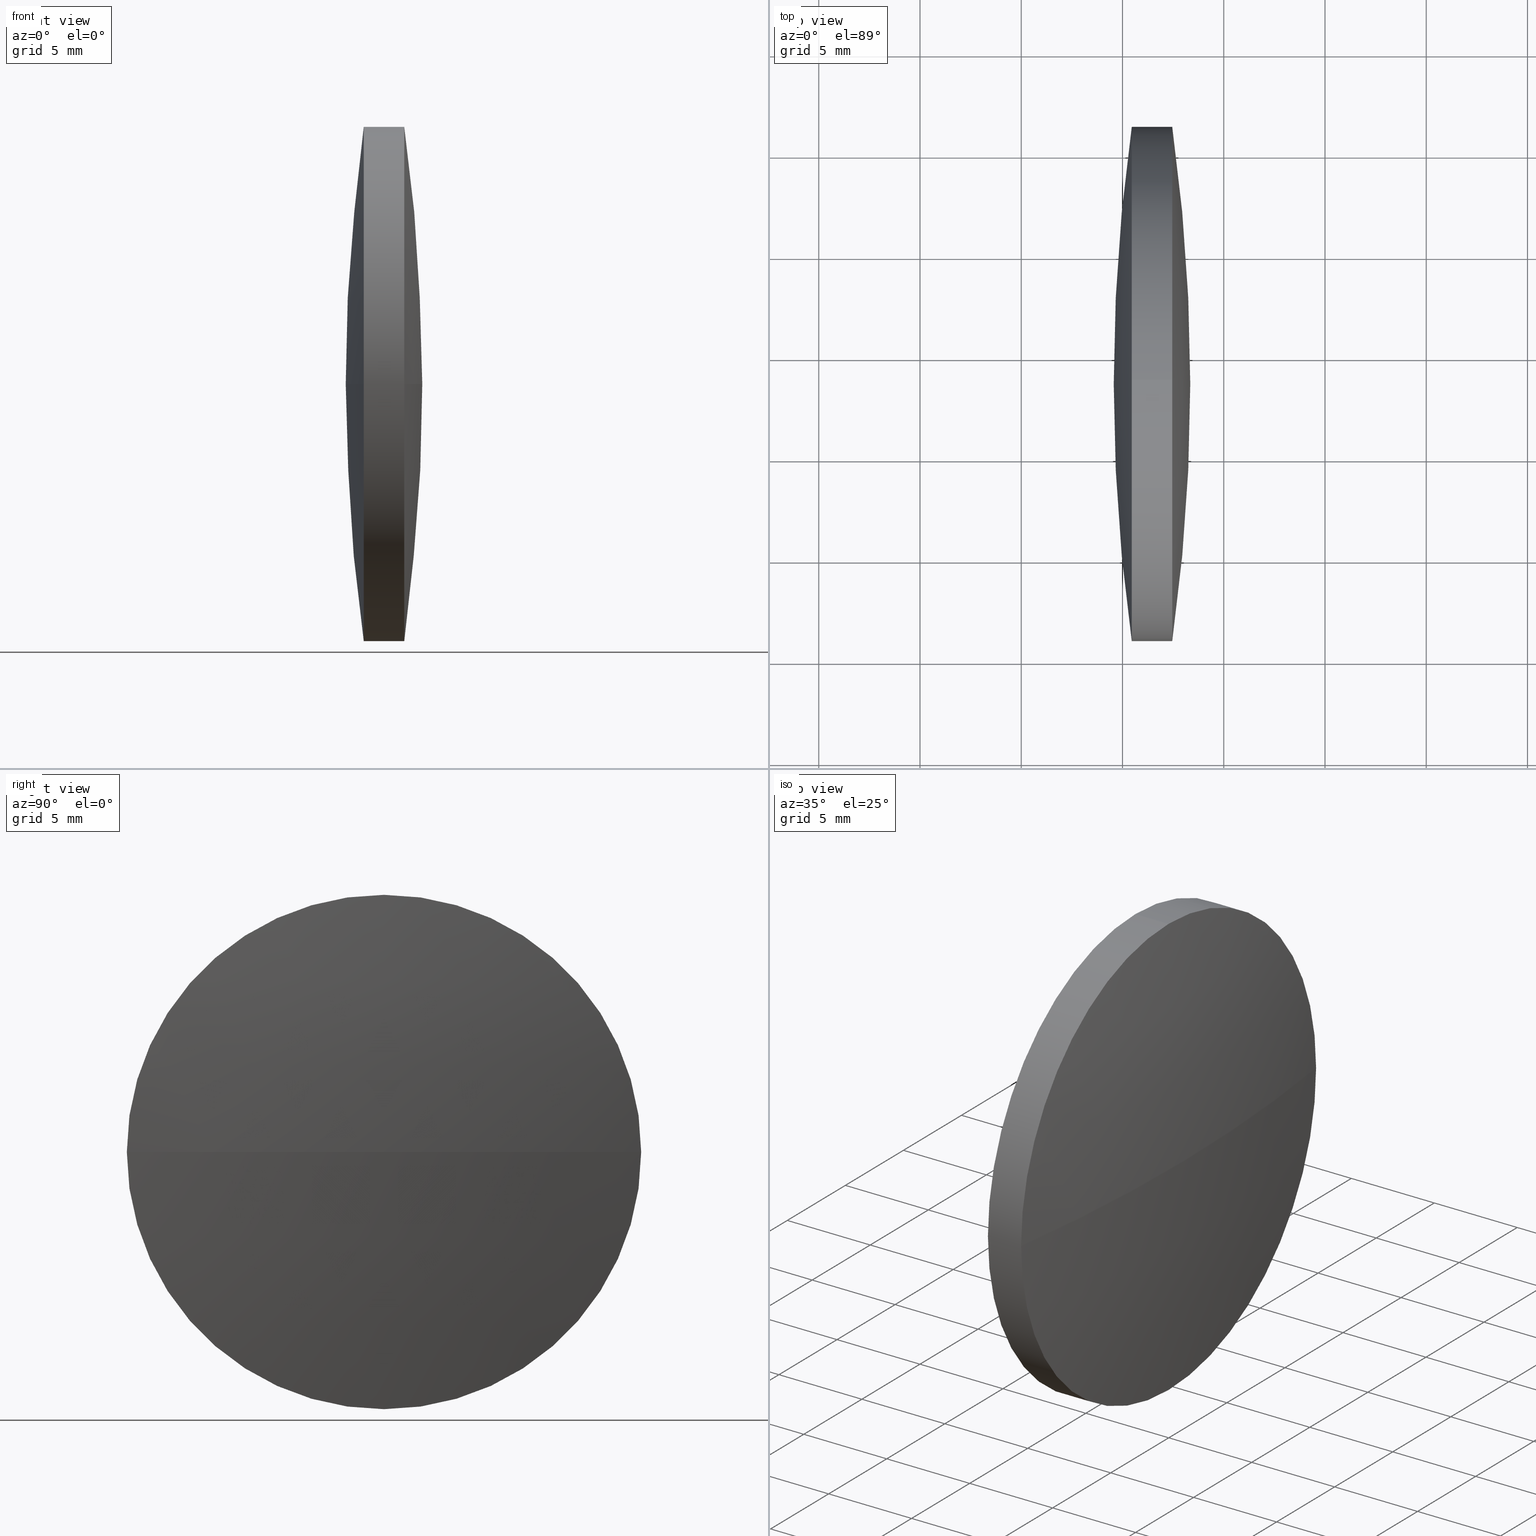
[diagram: canonical four-view strip — front | top / right | iso, engineering-drawing reading convention]
A machine part, canonical four-view strip (front | top / right | iso — engineering-drawing reading convention). The complete STEP part file that produces these views, byte-faithful:
ISO-10303-21;
HEADER;
FILE_DESCRIPTION (( 'STEP AP203' ),
    '1' );
FILE_NAME ('110100.STEP',
    '2019-07-08T06:41:18',
    ( '' ),
    ( '' ),
    'SwSTEP 2.0',
    'SolidWorks 2016',
    '' );
FILE_SCHEMA (( 'CONFIG_CONTROL_DESIGN' ));
ENDSEC;

DATA;
#1 = DATE_AND_TIME ( #54, #69 ) ;
#2 = CARTESIAN_POINT ( 'NONE',  ( 85.45852234609111500, 48.61611302318478100, 0.0000000000000000000 ) ) ;
#3 = CC_DESIGN_APPROVAL ( #117, ( #57 ) ) ;
#4 = ORIENTED_EDGE ( 'NONE', *, *, #28, .F. ) ;
#5 = CC_DESIGN_DATE_AND_TIME_ASSIGNMENT ( #329, #21, ( #107 ) ) ;
#6 = CALENDAR_DATE ( 2019, 8, 7 ) ;
#7 = PERSON_AND_ORGANIZATION ( #297, #109 ) ;
#8 = ORIENTED_EDGE ( 'NONE', *, *, #9, .T. ) ;
#9 = EDGE_CURVE ( 'NONE', #43, #343, #202, .T. ) ;
#10 = DIRECTION ( 'NONE',  ( 0.0000000000000000000, 0.0000000000000000000, 1.000000000000000000 ) ) ;
#11 = DIRECTION ( 'NONE',  ( 0.0000000000000000000, 0.0000000000000000000, -1.000000000000000000 ) ) ;
#12 = DESIGN_CONTEXT ( 'detailed design', #317, 'design' ) ;
#13 = DIRECTION ( 'NONE',  ( 0.0000000000000000000, 0.0000000000000000000, 1.000000000000000000 ) ) ;
#14 = COORDINATED_UNIVERSAL_TIME_OFFSET ( 8, 0, .AHEAD. ) ;
#15 = DIRECTION ( 'NONE',  ( -1.000000000000000000, -0.0000000000000000000, -0.0000000000000000000 ) ) ;
#16 = APPLICATION_PROTOCOL_DEFINITION ( 'international standard', 'config_control_design', 1994, #181 ) ;
#17 = COORDINATED_UNIVERSAL_TIME_OFFSET ( 8, 0, .AHEAD. ) ;
#18 = CC_DESIGN_PERSON_AND_ORGANIZATION_ASSIGNMENT ( #276, #341, ( #155 ) ) ;
#19 = APPROVAL_STATUS ( 'not_yet_approved' ) ;
#20 = EDGE_CURVE ( 'NONE', #22, #130, #261, .T. ) ;
#21 = DATE_TIME_ROLE ( 'creation_date' ) ;
#22 = VERTEX_POINT ( 'NONE', #307 ) ;
#23 = CALENDAR_DATE ( 2019, 8, 7 ) ;
#24 = PERSON_AND_ORGANIZATION ( #297, #109 ) ;
#25 = PRODUCT_DEFINITION ( 'δ֪', '', #187, #12 ) ;
#26 = APPROVAL_DATE_TIME ( #1, #51 ) ;
#27 = AXIS2_PLACEMENT_3D ( 'NONE', #79, #270, #138 ) ;
#28 = EDGE_CURVE ( 'NONE', #192, #169, #66, .T. ) ;
#29 = PERSON_AND_ORGANIZATION ( #297, #109 ) ;
#30 = APPROVAL_STATUS ( 'not_yet_approved' ) ;
#31 = COORDINATED_UNIVERSAL_TIME_OFFSET ( 8, 0, .AHEAD. ) ;
#32 = APPROVAL_PERSON_ORGANIZATION ( #262, #51, #259 ) ;
#33 = ORIENTED_EDGE ( 'NONE', *, *, #83, .T. ) ;
#34 = PERSON_AND_ORGANIZATION ( #297, #109 ) ;
#35 = DIRECTION ( 'NONE',  ( 0.0000000000000000000, 0.0000000000000000000, 1.000000000000000000 ) ) ;
#36 = DIRECTION ( 'NONE',  ( 0.0000000000000000000, 0.0000000000000000000, 1.000000000000000000 ) ) ;
#37 = ADVANCED_FACE ( 'NONE', ( #274 ), #120, .T. ) ;
#38 = DIRECTION ( 'NONE',  ( 0.0000000000000000000, 0.0000000000000000000, 1.000000000000000000 ) ) ;
#39 = CARTESIAN_POINT ( 'NONE',  ( 175.6168209058729100, 48.61611302318473100, 0.0000000000000000000 ) ) ;
#40 = APPROVAL ( #19, 'δָ��' ) ;
#41 = CARTESIAN_POINT ( 'NONE',  ( 87.45786520323396500, 61.31611302318484000, 1.555301434917129800E-015 ) ) ;
#42 = CARTESIAN_POINT ( 'NONE',  ( 0.0000000000000000000, 0.0000000000000000000, 0.0000000000000000000 ) ) ;
#43 = VERTEX_POINT ( 'NONE', #41 ) ;
#44 = DATE_TIME_ROLE ( 'creation_date' ) ;
#45 = SECURITY_CLASSIFICATION_LEVEL ( 'unclassified' ) ;
#46 = ORIENTED_EDGE ( 'NONE', *, *, #228, .T. ) ;
#47 = VECTOR ( 'NONE', #241, 1000.000000000000000 ) ;
#48 = AXIS2_PLACEMENT_3D ( 'NONE', #53, #133, #168 ) ;
#49 = SPHERICAL_SURFACE ( 'NONE', #291, 91.04838713121036200 ) ;
#50 = DATE_AND_TIME ( #60, #173 ) ;
#51 = APPROVAL ( #118, 'δָ��' ) ;
#52 = MANIFOLD_SOLID_BREP ( '��ת1', #119 ) ;
#53 = CARTESIAN_POINT ( 'NONE',  ( 79.30540135083715800, 48.61611302318478100, 0.0000000000000000000 ) ) ;
#54 = CALENDAR_DATE ( 2019, 8, 7 ) ;
#55 = PRODUCT ( '110100', '110100', '', ( #72 ) ) ;
#56 = EDGE_CURVE ( 'NONE', #219, #43, #265, .T. ) ;
#57 = SECURITY_CLASSIFICATION ( '', '', #63 ) ;
#58 = CC_DESIGN_APPROVAL ( #40, ( #25 ) ) ;
#59 = VERTEX_POINT ( 'NONE', #309 ) ;
#60 = CALENDAR_DATE ( 2019, 8, 7 ) ;
#61 = COORDINATED_UNIVERSAL_TIME_OFFSET ( 8, 0, .AHEAD. ) ;
#62 = CARTESIAN_POINT ( 'NONE',  ( 85.45852234609111500, 48.61611302318478100, 0.0000000000000000000 ) ) ;
#63 = SECURITY_CLASSIFICATION_LEVEL ( 'unclassified' ) ;
#64 = ORIENTED_EDGE ( 'NONE', *, *, #56, .T. ) ;
#65 = CARTESIAN_POINT ( 'NONE',  ( -2.700433356547117000, 48.61611302318491600, 0.0000000000000000000 ) ) ;
#66 = CIRCLE ( 'NONE', #149, 91.04838713121036200 ) ;
#67 = PERSON_AND_ORGANIZATION ( #297, #109 ) ;
#68 = SECURITY_CLASSIFICATION ( '', '', #45 ) ;
#69 = LOCAL_TIME ( 14, 41, 18.00000000000000000, #135 ) ;
#70 = APPROVAL_ROLE ( '' ) ;
#71 = DATE_AND_TIME ( #23, #171 ) ;
#72 = MECHANICAL_CONTEXT ( 'NONE', #181, 'mechanical' ) ;
#73 = EDGE_LOOP ( 'NONE', ( #264, #46, #92, #243, #141, #229 ) ) ;
#74 = AXIS2_PLACEMENT_3D ( 'NONE', #42, #122, #98 ) ;
#75 = ADVANCED_BREP_SHAPE_REPRESENTATION ( '110100', ( #52, #220 ), #147 ) ;
#76 = APPROVAL_DATE_TIME ( #157, #40 ) ;
#77 = CARTESIAN_POINT ( 'NONE',  ( 87.45786520323396500, 48.61611302318478100, 0.0000000000000000000 ) ) ;
#78 = DATE_TIME_ROLE ( 'classification_date' ) ;
#79 = CARTESIAN_POINT ( 'NONE',  ( 85.45852234609111500, 48.61611302318478100, 0.0000000000000000000 ) ) ;
#80 = DIRECTION ( 'NONE',  ( 0.0000000000000000000, -1.000000000000000000, -1.224646799147353200E-016 ) ) ;
#81 = CIRCLE ( 'NONE', #325, 12.69999999999999600 ) ;
#82 = PERSON_AND_ORGANIZATION_ROLE ( 'classification_officer' ) ;
#83 = EDGE_CURVE ( 'NONE', #343, #22, #193, .T. ) ;
#84 = APPROVAL_ROLE ( '' ) ;
#85 = SHAPE_DEFINITION_REPRESENTATION ( #209, #75 ) ;
#86 = CC_DESIGN_PERSON_AND_ORGANIZATION_ASSIGNMENT ( #67, #214, ( #187 ) ) ;
#87 = APPROVAL_PERSON_ORGANIZATION ( #301, #40, #99 ) ;
#88 = AXIS2_PLACEMENT_3D ( 'NONE', #334, #11, #198 ) ;
#89 = CC_DESIGN_SECURITY_CLASSIFICATION ( #68, ( #155 ) ) ;
#90 = ORIENTED_EDGE ( 'NONE', *, *, #20, .T. ) ;
#91 = APPROVAL_PERSON_ORGANIZATION ( #29, #128, #70 ) ;
#92 = ORIENTED_EDGE ( 'NONE', *, *, #272, .T. ) ;
#93 = DIRECTION ( 'NONE',  ( 0.0000000000000000000, 1.000000000000000000, 0.0000000000000000000 ) ) ;
#94 = ADVANCED_FACE ( 'NONE', ( #326 ), #131, .T. ) ;
#95 = CC_DESIGN_PERSON_AND_ORGANIZATION_ASSIGNMENT ( #34, #204, ( #25 ) ) ;
#96 = APPROVAL_STATUS ( 'not_yet_approved' ) ;
#97 = PERSON_AND_ORGANIZATION ( #297, #109 ) ;
#98 = DIRECTION ( 'NONE',  ( 1.000000000000000000, 0.0000000000000000000, 0.0000000000000000000 ) ) ;
#99 = APPROVAL_ROLE ( '' ) ;
#100 = EDGE_LOOP ( 'NONE', ( #8, #33, #143, #273, #303, #64 ) ) ;
#101 = MECHANICAL_CONTEXT ( 'NONE', #206, 'mechanical' ) ;
#102 = FACE_OUTER_BOUND ( 'NONE', #248, .T. ) ;
#103 = PERSON_AND_ORGANIZATION ( #297, #109 ) ;
#104 = CALENDAR_DATE ( 2019, 8, 7 ) ;
#105 = CC_DESIGN_DATE_AND_TIME_ASSIGNMENT ( #132, #78, ( #57 ) ) ;
#106 = AXIS2_PLACEMENT_3D ( 'NONE', #242, #296, #245 ) ;
#107 = PRODUCT_DEFINITION ( 'δ֪', '', #155, #332 ) ;
#108 = DIRECTION ( 'NONE',  ( 0.0000000000000000000, 0.0000000000000000000, 1.000000000000000000 ) ) ;
#109 = ORGANIZATION ( 'δָ��', 'δָ��', '' ) ;
#110 = DIRECTION ( 'NONE',  ( 0.0000000000000000000, 1.000000000000000000, 0.0000000000000000000 ) ) ;
#111 = ADVANCED_FACE ( 'NONE', ( #102 ), #49, .T. ) ;
#112 = CC_DESIGN_APPROVAL ( #128, ( #107 ) ) ;
#113 = CIRCLE ( 'NONE', #321, 12.69999999999999600 ) ;
#114 = ORIENTED_EDGE ( 'NONE', *, *, #250, .T. ) ;
#115 = ORIENTED_EDGE ( 'NONE', *, *, #236, .T. ) ;
#116 = CARTESIAN_POINT ( 'NONE',  ( 85.45852234609111500, 48.61611302318478100, 12.69999999999999600 ) ) ;
#117 = APPROVAL ( #30, 'δָ��' ) ;
#118 = APPROVAL_STATUS ( 'not_yet_approved' ) ;
#119 = CLOSED_SHELL ( 'NONE', ( #222, #150, #331, #111, #94, #37 ) ) ;
#120 = CYLINDRICAL_SURFACE ( 'NONE', #253, 12.69999999999999600 ) ;
#121 = PERSON_AND_ORGANIZATION ( #297, #109 ) ;
#122 = DIRECTION ( 'NONE',  ( 0.0000000000000000000, 0.0000000000000000000, 1.000000000000000000 ) ) ;
#123 = CC_DESIGN_PERSON_AND_ORGANIZATION_ASSIGNMENT ( #205, #313, ( #155 ) ) ;
#124 = PERSON_AND_ORGANIZATION_ROLE ( 'classification_officer' ) ;
#125 = APPROVAL_DATE_TIME ( #311, #345 ) ;
#126 = CIRCLE ( 'NONE', #27, 12.69999999999999600 ) ;
#127 = AXIS2_PLACEMENT_3D ( 'NONE', #62, #199, #35 ) ;
#128 = APPROVAL ( #96, 'δָ��' ) ;
#129 = VECTOR ( 'NONE', #335, 1000.000000000000000 ) ;
#130 = VERTEX_POINT ( 'NONE', #254 ) ;
#131 = SPHERICAL_SURFACE ( 'NONE', #305, 91.04838713120965100 ) ;
#132 = DATE_AND_TIME ( #238, #178 ) ;
#133 = DIRECTION ( 'NONE',  ( -1.000000000000000000, -0.0000000000000000000, -0.0000000000000000000 ) ) ;
#134 = DIRECTION ( 'NONE',  ( 0.0000000000000000000, 1.000000000000000000, 1.224646799147353200E-016 ) ) ;
#135 = COORDINATED_UNIVERSAL_TIME_OFFSET ( 8, 0, .AHEAD. ) ;
#136 = CARTESIAN_POINT ( 'NONE',  ( 175.6168209058729100, 48.61611302318473100, 0.0000000000000000000 ) ) ;
#137 =( LENGTH_UNIT ( ) NAMED_UNIT ( * ) SI_UNIT ( .MILLI., .METRE. ) );
#138 = DIRECTION ( 'NONE',  ( 0.0000000000000000000, 0.0000000000000000000, 1.000000000000000000 ) ) ;
#139 = EDGE_CURVE ( 'NONE', #251, #192, #113, .T. ) ;
#140 = CIRCLE ( 'NONE', #106, 12.69999999999999600 ) ;
#141 = ORIENTED_EDGE ( 'NONE', *, *, #236, .F. ) ;
#142 = ORIENTED_EDGE ( 'NONE', *, *, #324, .F. ) ;
#143 = ORIENTED_EDGE ( 'NONE', *, *, #316, .F. ) ;
#144 = PRODUCT_RELATED_PRODUCT_CATEGORY ( 'detail', '', ( #55 ) ) ;
#145 = APPROVAL_DATE_TIME ( #249, #258 ) ;
#146 = UNCERTAINTY_MEASURE_WITH_UNIT (LENGTH_MEASURE( 1.000000000000000100E-005 ), #137, 'distance_accuracy_value', 'NONE');
#147 =( GEOMETRIC_REPRESENTATION_CONTEXT ( 3 ) GLOBAL_UNCERTAINTY_ASSIGNED_CONTEXT ( ( #146 ) ) GLOBAL_UNIT_ASSIGNED_CONTEXT ( ( #137, #337, #151 ) ) REPRESENTATION_CONTEXT ( 'NONE', 'WORKASPACE' ) );
#148 = COORDINATED_UNIVERSAL_TIME_OFFSET ( 8, 0, .AHEAD. ) ;
#149 = AXIS2_PLACEMENT_3D ( 'NONE', #39, #231, #310 ) ;
#150 = ADVANCED_FACE ( 'NONE', ( #299 ), #340, .T. ) ;
#151 =( NAMED_UNIT ( * ) SI_UNIT ( $, .STERADIAN. ) SOLID_ANGLE_UNIT ( ) );
#152 = ORIENTED_EDGE ( 'NONE', *, *, #316, .T. ) ;
#153 = APPROVAL_PERSON_ORGANIZATION ( #319, #258, #268 ) ;
#154 = DIRECTION ( 'NONE',  ( -1.000000000000000000, -0.0000000000000000000, -0.0000000000000000000 ) ) ;
#155 = PRODUCT_DEFINITION_FORMATION_WITH_SPECIFIED_SOURCE ( '�κ�', '', #320, .NOT_KNOWN. ) ;
#156 = APPLICATION_CONTEXT ( 'configuration controlled 3d designs of mechanical parts and assemblies' ) ;
#157 = DATE_AND_TIME ( #221, #293 ) ;
#158 = PERSON_AND_ORGANIZATION_ROLE ( 'design_owner' ) ;
#159 = APPROVAL_ROLE ( '' ) ;
#160 = CIRCLE ( 'NONE', #312, 91.04838713121036200 ) ;
#161 = EDGE_LOOP ( 'NONE', ( #152, #90, #323, #4 ) ) ;
#162 = EDGE_CURVE ( 'NONE', #219, #251, #263, .T. ) ;
#163 = APPROVAL_DATE_TIME ( #50, #117 ) ;
#164 = ORIENTED_EDGE ( 'NONE', *, *, #228, .F. ) ;
#165 = CC_DESIGN_SECURITY_CLASSIFICATION ( #57, ( #187 ) ) ;
#166 = LOCAL_TIME ( 14, 41, 18.00000000000000000, #61 ) ;
#167 = AXIS2_PLACEMENT_3D ( 'NONE', #304, #255, #110 ) ;
#168 = DIRECTION ( 'NONE',  ( 0.0000000000000000000, 0.0000000000000000000, 1.000000000000000000 ) ) ;
#169 = VERTEX_POINT ( 'NONE', #244 ) ;
#170 = AXIS2_PLACEMENT_3D ( 'NONE', #177, #225, #38 ) ;
#171 = LOCAL_TIME ( 14, 41, 18.00000000000000000, #237 ) ;
#172 = CC_DESIGN_PERSON_AND_ORGANIZATION_ASSIGNMENT ( #24, #82, ( #57 ) ) ;
#173 = LOCAL_TIME ( 14, 41, 18.00000000000000000, #31 ) ;
#174 = CC_DESIGN_DATE_AND_TIME_ASSIGNMENT ( #210, #44, ( #25 ) ) ;
#175 = ORIENTED_EDGE ( 'NONE', *, *, #56, .F. ) ;
#176 = PERSON_AND_ORGANIZATION ( #297, #109 ) ;
#177 = CARTESIAN_POINT ( 'NONE',  ( 87.45786520323396500, 48.61611302318478100, 0.0000000000000000000 ) ) ;
#178 = LOCAL_TIME ( 14, 41, 18.00000000000000000, #14 ) ;
#179 = CALENDAR_DATE ( 2019, 8, 7 ) ;
#180 = DIRECTION ( 'NONE',  ( -0.0000000000000000000, 0.0000000000000000000, -1.000000000000000000 ) ) ;
#181 = APPLICATION_CONTEXT ( 'configuration controlled 3d designs of mechanical parts and assemblies' ) ;
#182 = DATE_TIME_ROLE ( 'classification_date' ) ;
#183 = PERSON_AND_ORGANIZATION_ROLE ( 'creator' ) ;
#184 = CYLINDRICAL_SURFACE ( 'NONE', #48, 12.69999999999999600 ) ;
#185 = ORIENTED_EDGE ( 'NONE', *, *, #272, .F. ) ;
#186 = EDGE_CURVE ( 'NONE', #130, #169, #160, .T. ) ;
#187 = PRODUCT_DEFINITION_FORMATION_WITH_SPECIFIED_SOURCE ( '�κ�', '', #55, .NOT_KNOWN. ) ;
#188 = DIRECTION ( 'NONE',  ( 0.0000000000000000000, -1.000000000000000000, 0.0000000000000000000 ) ) ;
#189 = CARTESIAN_POINT ( 'NONE',  ( 0.0000000000000000000, 0.0000000000000000000, 0.0000000000000000000 ) ) ;
#190 = DATE_AND_TIME ( #288, #166 ) ;
#191 = DIRECTION ( 'NONE',  ( 0.0000000000000000000, 0.0000000000000000000, 1.000000000000000000 ) ) ;
#192 = VERTEX_POINT ( 'NONE', #246 ) ;
#193 = LINE ( 'NONE', #306, #129 ) ;
#194 = ORIENTED_EDGE ( 'NONE', *, *, #324, .T. ) ;
#195 = APPROVAL_DATE_TIME ( #71, #128 ) ;
#196 = LOCAL_TIME ( 14, 41, 18.00000000000000000, #267 ) ;
#197 = AXIS2_PLACEMENT_3D ( 'NONE', #230, #154, #13 ) ;
#198 = DIRECTION ( 'NONE',  ( -1.000000000000000000, 0.0000000000000000000, 0.0000000000000000000 ) ) ;
#199 = DIRECTION ( 'NONE',  ( -1.000000000000000000, -0.0000000000000000000, -0.0000000000000000000 ) ) ;
#200 = DIRECTION ( 'NONE',  ( -1.000000000000000000, -0.0000000000000000000, -0.0000000000000000000 ) ) ;
#201 = CC_DESIGN_APPROVAL ( #258, ( #187 ) ) ;
#202 = CIRCLE ( 'NONE', #170, 12.69999999999999600 ) ;
#203 = COORDINATED_UNIVERSAL_TIME_OFFSET ( 8, 0, .AHEAD. ) ;
#204 = PERSON_AND_ORGANIZATION_ROLE ( 'creator' ) ;
#205 = PERSON_AND_ORGANIZATION ( #297, #109 ) ;
#206 = APPLICATION_CONTEXT ( 'configuration controlled 3d designs of mechanical parts and assemblies' ) ;
#207 = CIRCLE ( 'NONE', #234, 12.69999999999999600 ) ;
#208 = ORIENTED_EDGE ( 'NONE', *, *, #28, .T. ) ;
#209 = PRODUCT_DEFINITION_SHAPE ( 'NONE', 'NONE',  #25 ) ;
#210 = DATE_AND_TIME ( #284, #308 ) ;
#211 = DIRECTION ( 'NONE',  ( 0.0000000000000000000, 1.224646799147353200E-016, -1.000000000000000000 ) ) ;
#212 = LOCAL_TIME ( 14, 41, 18.00000000000000000, #148 ) ;
#213 = AXIS2_PLACEMENT_3D ( 'NONE', #333, #10, #188 ) ;
#214 = PERSON_AND_ORGANIZATION_ROLE ( 'design_supplier' ) ;
#215 = CARTESIAN_POINT ( 'NONE',  ( 79.30540135083715800, 48.61611302318478100, 12.69999999999999600 ) ) ;
#216 = CARTESIAN_POINT ( 'NONE',  ( 88.34795377466252800, 48.61611302318490900, 0.0000000000000000000 ) ) ;
#217 = CC_DESIGN_PERSON_AND_ORGANIZATION_ASSIGNMENT ( #121, #269, ( #187 ) ) ;
#218 = SPHERICAL_SURFACE ( 'NONE', #167, 91.04838713121036200 ) ;
#219 = VERTEX_POINT ( 'NONE', #294 ) ;
#220 = AXIS2_PLACEMENT_3D ( 'NONE', #189, #315, #235 ) ;
#221 = CALENDAR_DATE ( 2019, 8, 7 ) ;
#222 = ADVANCED_FACE ( 'NONE', ( #322 ), #184, .T. ) ;
#223 = FACE_OUTER_BOUND ( 'NONE', #161, .T. ) ;
#224 = ORIENTED_EDGE ( 'NONE', *, *, #250, .F. ) ;
#225 = DIRECTION ( 'NONE',  ( -1.000000000000000000, -0.0000000000000000000, -0.0000000000000000000 ) ) ;
#226 = CARTESIAN_POINT ( 'NONE',  ( 85.45852234609111500, 48.61611302318478100, 0.0000000000000000000 ) ) ;
#227 = APPROVAL_PERSON_ORGANIZATION ( #103, #117, #84 ) ;
#228 = EDGE_CURVE ( 'NONE', #343, #59, #207, .T. ) ;
#229 = ORIENTED_EDGE ( 'NONE', *, *, #20, .F. ) ;
#230 = CARTESIAN_POINT ( 'NONE',  ( 87.45786520323396500, 48.61611302318478100, 0.0000000000000000000 ) ) ;
#231 = DIRECTION ( 'NONE',  ( -0.0000000000000000000, 0.0000000000000000000, 1.000000000000000000 ) ) ;
#232 = PERSON_AND_ORGANIZATION ( #297, #109 ) ;
#233 = PERSON_AND_ORGANIZATION_ROLE ( 'design_owner' ) ;
#234 = AXIS2_PLACEMENT_3D ( 'NONE', #77, #266, #108 ) ;
#235 = DIRECTION ( 'NONE',  ( 1.000000000000000000, 0.0000000000000000000, 0.0000000000000000000 ) ) ;
#236 = EDGE_CURVE ( 'NONE', #130, #251, #81, .T. ) ;
#237 = COORDINATED_UNIVERSAL_TIME_OFFSET ( 8, 0, .AHEAD. ) ;
#238 = CALENDAR_DATE ( 2019, 8, 7 ) ;
#239 = APPROVAL_PERSON_ORGANIZATION ( #342, #345, #159 ) ;
#240 = CC_DESIGN_PERSON_AND_ORGANIZATION_ASSIGNMENT ( #176, #158, ( #320 ) ) ;
#241 = DIRECTION ( 'NONE',  ( -1.000000000000000000, -0.0000000000000000000, -0.0000000000000000000 ) ) ;
#242 = CARTESIAN_POINT ( 'NONE',  ( 87.45786520323396500, 48.61611302318478100, 0.0000000000000000000 ) ) ;
#243 = ORIENTED_EDGE ( 'NONE', *, *, #162, .T. ) ;
#244 = CARTESIAN_POINT ( 'NONE',  ( 84.56843377466255200, 48.61611302318473100, 0.0000000000000000000 ) ) ;
#245 = DIRECTION ( 'NONE',  ( 0.0000000000000000000, 0.0000000000000000000, 1.000000000000000000 ) ) ;
#246 = CARTESIAN_POINT ( 'NONE',  ( 85.45852234609111500, 61.31611302318471200, 0.0000000000000000000 ) ) ;
#247 = DIRECTION ( 'NONE',  ( -1.000000000000000000, -0.0000000000000000000, -0.0000000000000000000 ) ) ;
#248 = EDGE_LOOP ( 'NONE', ( #295, #115, #260, #208 ) ) ;
#249 = DATE_AND_TIME ( #6, #328 ) ;
#250 = EDGE_CURVE ( 'NONE', #330, #59, #279, .T. ) ;
#251 = VERTEX_POINT ( 'NONE', #116 ) ;
#252 = DIRECTION ( 'NONE',  ( 0.0000000000000000000, -1.224646799147353200E-016, 1.000000000000000000 ) ) ;
#253 = AXIS2_PLACEMENT_3D ( 'NONE', #278, #15, #281 ) ;
#254 = CARTESIAN_POINT ( 'NONE',  ( 85.45852234609111500, 35.91611302318479900, -1.555301434917130000E-015 ) ) ;
#255 = DIRECTION ( 'NONE',  ( -0.0000000000000000000, 0.0000000000000000000, -1.000000000000000000 ) ) ;
#256 = DIRECTION ( 'NONE',  ( 0.0000000000000000000, 0.0000000000000000000, 1.000000000000000000 ) ) ;
#257 = DIRECTION ( 'NONE',  ( 0.0000000000000000000, -1.000000000000000000, 0.0000000000000000000 ) ) ;
#258 = APPROVAL ( #289, 'δָ��' ) ;
#259 = APPROVAL_ROLE ( '' ) ;
#260 = ORIENTED_EDGE ( 'NONE', *, *, #139, .T. ) ;
#261 = CIRCLE ( 'NONE', #127, 12.69999999999999600 ) ;
#262 = PERSON_AND_ORGANIZATION ( #297, #109 ) ;
#263 = LINE ( 'NONE', #215, #47 ) ;
#264 = ORIENTED_EDGE ( 'NONE', *, *, #83, .F. ) ;
#265 = CIRCLE ( 'NONE', #197, 12.69999999999999600 ) ;
#266 = DIRECTION ( 'NONE',  ( -1.000000000000000000, -0.0000000000000000000, -0.0000000000000000000 ) ) ;
#267 = COORDINATED_UNIVERSAL_TIME_OFFSET ( 8, 0, .AHEAD. ) ;
#268 = APPROVAL_ROLE ( '' ) ;
#269 = PERSON_AND_ORGANIZATION_ROLE ( 'creator' ) ;
#270 = DIRECTION ( 'NONE',  ( -1.000000000000000000, -0.0000000000000000000, -0.0000000000000000000 ) ) ;
#271 = CARTESIAN_POINT ( 'NONE',  ( 87.45786520323396500, 48.61611302318478100, -12.69999999999999600 ) ) ;
#272 = EDGE_CURVE ( 'NONE', #59, #219, #140, .T. ) ;
#273 = ORIENTED_EDGE ( 'NONE', *, *, #139, .F. ) ;
#274 = FACE_OUTER_BOUND ( 'NONE', #73, .T. ) ;
#275 = CC_DESIGN_APPROVAL ( #51, ( #155 ) ) ;
#276 = PERSON_AND_ORGANIZATION ( #297, #109 ) ;
#277 = CARTESIAN_POINT ( 'NONE',  ( -2.700433356547117000, 48.61611302318491600, 0.0000000000000000000 ) ) ;
#278 = CARTESIAN_POINT ( 'NONE',  ( 79.30540135083715800, 48.61611302318478100, 0.0000000000000000000 ) ) ;
#279 = CIRCLE ( 'NONE', #88, 91.04838713120965100 ) ;
#280 = EDGE_LOOP ( 'NONE', ( #142, #114, #164, #318 ) ) ;
#281 = DIRECTION ( 'NONE',  ( 0.0000000000000000000, 0.0000000000000000000, 1.000000000000000000 ) ) ;
#282 = CC_DESIGN_PERSON_AND_ORGANIZATION_ASSIGNMENT ( #7, #183, ( #107 ) ) ;
#283 = CARTESIAN_POINT ( 'NONE',  ( 175.6168209058729100, 48.61611302318473100, 0.0000000000000000000 ) ) ;
#284 = CALENDAR_DATE ( 2019, 8, 7 ) ;
#285 = APPLICATION_PROTOCOL_DEFINITION ( 'international standard', 'config_control_design', 1994, #156 ) ;
#286 = PRODUCT_DEFINITION_SHAPE ( 'NONE', 'NONE',  #107 ) ;
#287 = APPLICATION_PROTOCOL_DEFINITION ( 'international standard', 'config_control_design', 1994, #317 ) ;
#288 = CALENDAR_DATE ( 2019, 8, 7 ) ;
#289 = APPROVAL_STATUS ( 'not_yet_approved' ) ;
#290 = APPLICATION_PROTOCOL_DEFINITION ( 'international standard', 'config_control_design', 1994, #206 ) ;
#291 = AXIS2_PLACEMENT_3D ( 'NONE', #283, #180, #93 ) ;
#292 = CC_DESIGN_DATE_AND_TIME_ASSIGNMENT ( #190, #182, ( #68 ) ) ;
#293 = LOCAL_TIME ( 14, 41, 18.00000000000000000, #17 ) ;
#294 = CARTESIAN_POINT ( 'NONE',  ( 87.45786520323396500, 48.61611302318478100, 12.69999999999999600 ) ) ;
#295 = ORIENTED_EDGE ( 'NONE', *, *, #186, .F. ) ;
#296 = DIRECTION ( 'NONE',  ( -1.000000000000000000, -0.0000000000000000000, -0.0000000000000000000 ) ) ;
#297 = PERSON ( 'δָ��', 'δָ��', 'δָ��', ('δָ��'), ('δָ��'), ('δָ��') ) ;
#298 = CIRCLE ( 'NONE', #344, 91.04838713120965100 ) ;
#299 = FACE_OUTER_BOUND ( 'NONE', #339, .T. ) ;
#300 = PRODUCT_RELATED_PRODUCT_CATEGORY ( 'detail', '', ( #320 ) ) ;
#301 = PERSON_AND_ORGANIZATION ( #297, #109 ) ;
#302 = COORDINATED_UNIVERSAL_TIME_OFFSET ( 8, 0, .AHEAD. ) ;
#303 = ORIENTED_EDGE ( 'NONE', *, *, #162, .F. ) ;
#304 = CARTESIAN_POINT ( 'NONE',  ( 175.6168209058729100, 48.61611302318473100, 0.0000000000000000000 ) ) ;
#305 = AXIS2_PLACEMENT_3D ( 'NONE', #65, #256, #257 ) ;
#306 = CARTESIAN_POINT ( 'NONE',  ( 79.30540135083715800, 48.61611302318478100, -12.69999999999999600 ) ) ;
#307 = CARTESIAN_POINT ( 'NONE',  ( 85.45852234609111500, 48.61611302318478100, -12.69999999999999600 ) ) ;
#308 = LOCAL_TIME ( 14, 41, 18.00000000000000000, #302 ) ;
#309 = CARTESIAN_POINT ( 'NONE',  ( 87.45786520323396500, 35.91611302318485600, 0.0000000000000000000 ) ) ;
#310 = DIRECTION ( 'NONE',  ( 1.000000000000000000, 0.0000000000000000000, 0.0000000000000000000 ) ) ;
#311 = DATE_AND_TIME ( #179, #196 ) ;
#312 = AXIS2_PLACEMENT_3D ( 'NONE', #136, #211, #134 ) ;
#313 = PERSON_AND_ORGANIZATION_ROLE ( 'design_supplier' ) ;
#314 = CC_DESIGN_APPROVAL ( #345, ( #68 ) ) ;
#315 = DIRECTION ( 'NONE',  ( 0.0000000000000000000, 0.0000000000000000000, 1.000000000000000000 ) ) ;
#316 = EDGE_CURVE ( 'NONE', #192, #22, #126, .T. ) ;
#317 = APPLICATION_CONTEXT ( 'configuration controlled 3d designs of mechanical parts and assemblies' ) ;
#318 = ORIENTED_EDGE ( 'NONE', *, *, #9, .F. ) ;
#319 = PERSON_AND_ORGANIZATION ( #297, #109 ) ;
#320 = PRODUCT ( '110100', '110100', '', ( #101 ) ) ;
#321 = AXIS2_PLACEMENT_3D ( 'NONE', #226, #200, #36 ) ;
#322 = FACE_OUTER_BOUND ( 'NONE', #100, .T. ) ;
#323 = ORIENTED_EDGE ( 'NONE', *, *, #186, .T. ) ;
#324 = EDGE_CURVE ( 'NONE', #330, #43, #298, .T. ) ;
#325 = AXIS2_PLACEMENT_3D ( 'NONE', #2, #247, #191 ) ;
#326 = FACE_OUTER_BOUND ( 'NONE', #280, .T. ) ;
#327 = CC_DESIGN_PERSON_AND_ORGANIZATION_ASSIGNMENT ( #232, #124, ( #68 ) ) ;
#328 = LOCAL_TIME ( 14, 41, 18.00000000000000000, #203 ) ;
#329 = DATE_AND_TIME ( #104, #212 ) ;
#330 = VERTEX_POINT ( 'NONE', #216 ) ;
#331 = ADVANCED_FACE ( 'NONE', ( #223 ), #218, .T. ) ;
#332 = DESIGN_CONTEXT ( 'detailed design', #156, 'design' ) ;
#333 = CARTESIAN_POINT ( 'NONE',  ( -2.700433356547117000, 48.61611302318491600, 0.0000000000000000000 ) ) ;
#334 = CARTESIAN_POINT ( 'NONE',  ( -2.700433356547117000, 48.61611302318491600, 0.0000000000000000000 ) ) ;
#335 = DIRECTION ( 'NONE',  ( -1.000000000000000000, -0.0000000000000000000, -0.0000000000000000000 ) ) ;
#336 = CC_DESIGN_PERSON_AND_ORGANIZATION_ASSIGNMENT ( #97, #233, ( #55 ) ) ;
#337 =( NAMED_UNIT ( * ) PLANE_ANGLE_UNIT ( ) SI_UNIT ( $, .RADIAN. ) );
#338 = APPROVAL_STATUS ( 'not_yet_approved' ) ;
#339 = EDGE_LOOP ( 'NONE', ( #224, #194, #175, #185 ) ) ;
#340 = SPHERICAL_SURFACE ( 'NONE', #213, 91.04838713120965100 ) ;
#341 = PERSON_AND_ORGANIZATION_ROLE ( 'creator' ) ;
#342 = PERSON_AND_ORGANIZATION ( #297, #109 ) ;
#343 = VERTEX_POINT ( 'NONE', #271 ) ;
#344 = AXIS2_PLACEMENT_3D ( 'NONE', #277, #252, #80 ) ;
#345 = APPROVAL ( #338, 'δָ��' ) ;
ENDSEC;
END-ISO-10303-21;
